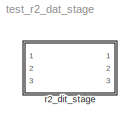
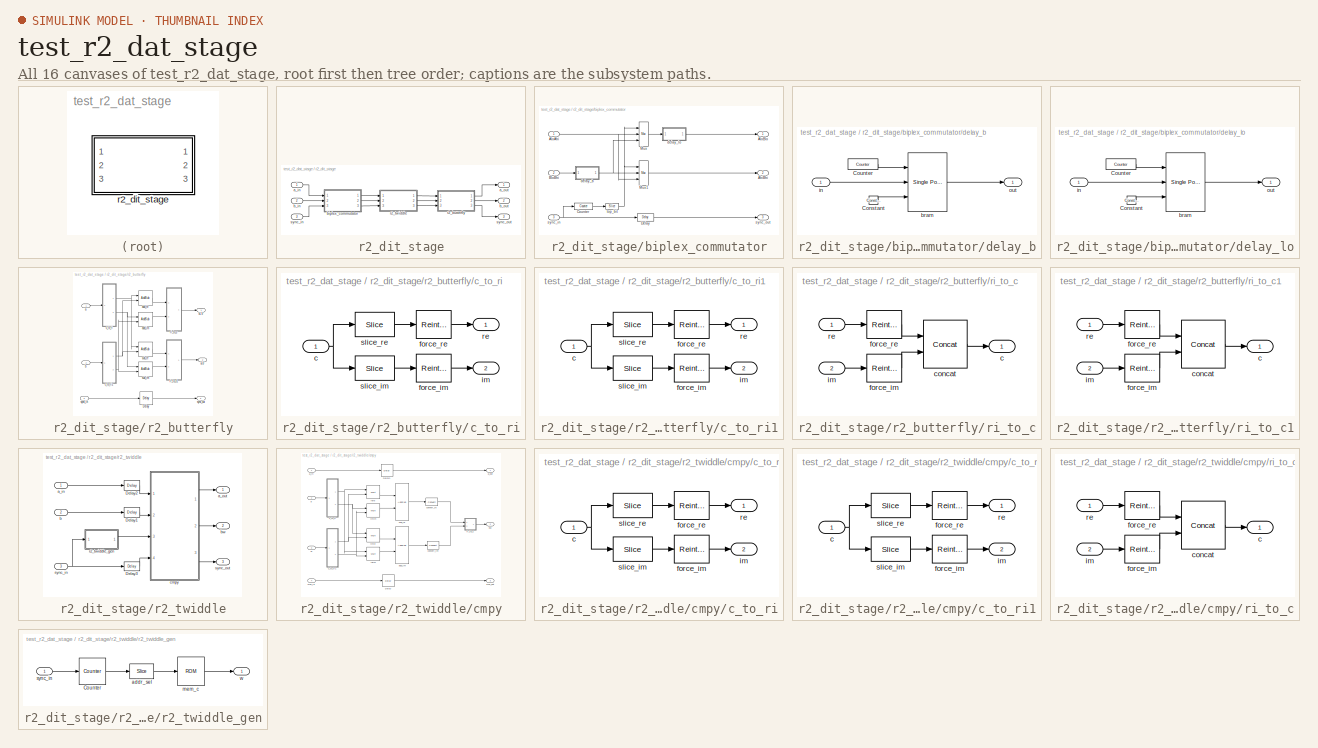
[diagram: thumbnail index - all 16 canvases of the model, root first then tree order]
MODEL test_r2_dat_stage
KIND model
BLOCK [SubSystem] r2_dit_stage
  AttributesFormatString = stage 3 of 8\ndelay bram\ntwiddle dist
  MaskCallbackString = ||||||||
  MaskDescription = A radix-2 decimation-in-time Fast Fourier Transform stage.
  MaskEnableString = on,on,on,on,on,on,on,on,on
  MaskHelp = <pre>\nDescription::\n\nA radix-2 decimation-in-time Fast Fourier Transform stage.\n\nThis radix-2 decimation-in-time FFT stage is designed to be daisy chained together\nto form a multi-stage FFT.  The resulting FFT will have (2^n_stages) points.\n\nThe two inputs to the chain are independent complex signals (e.g. A and B).\n\nThe two outputs of the last stage of the chain are commuted such that t...<+2411ch>
  MaskIconFrame = on
  MaskIconOpaque = on
  MaskIconRotate = none
  MaskIconUnits = autoscale
  MaskInitialization = %return\nr2_dit_stage_init(gcb, ...\n    n_stages,cur_stage,n_bits,bin_pt, ...\n    commutator_bram,twiddle_bram, ...\n    n_bits_w,mult_latency,add_latency);
  MaskPromptString = Total Stages|Current Stage|Number of Bits In|Binary Point In/Out|Use BRAM for Biplex Commutator|Use BRAM For Twiddle Coefficients|Twiddle Coefficient Bitwidth|Multiplier Latency|Adder Latency
  MaskSelfModifiable = on
  MaskStyleString = edit,edit,edit,edit,checkbox,checkbox,edit,edit,edit
  MaskTabNameString = ,,,,,,,,
  MaskToolTipString = on,on,on,on,on,on,on,on,on
  MaskTunableValueString = on,on,on,on,on,on,on,on,on
  MaskType = Radix-2 DIT FFT Stage
  MaskValueString = 8|3|7|7|on|off|9|3|1
  MaskVarAliasString = ,,,,,,,,
  MaskVariables = n_stages=@1;cur_stage=@2;n_bits=@3;bin_pt=@4;commutator_bram=@5;twiddle_bram=@6;n_bits_w=@7;mult_latency=@8;add_latency=@9;
  MaskVisibilityString = on,on,on,on,on,on,on,on,on
  MinAlgLoopOccurrences = off
  Ports = [3, 3]
  RTWSystemCode = Auto
  TreatAsAtomicUnit = off
  UserData = DataTag0
  UserDataPersistent = on
BLOCK [Inport] r2_dit_stage/a_in
  IconDisplay = Port number
  LatchInput = off
  Port = 1
BLOCK [Outport] r2_dit_stage/a_out
  BusOutputAsStruct = off
  IconDisplay = Port number
BLOCK [Inport] r2_dit_stage/b_in
  IconDisplay = Port number
  LatchInput = off
  Port = 2
BLOCK [Outport] r2_dit_stage/b_out
  BusOutputAsStruct = off
  IconDisplay = Port number
  Port = 2
BLOCK [SubSystem] r2_dit_stage/biplex_commutator
  AttributesFormatString = size = 64\ndelay bram
  MaskCallbackString = ||
  MaskDescription = The biplex commutator commutes the first half of the BloBhi input \"block\"  with the last half of the AloAhi input \"block\".  A \"block\" is 2^log2_size consecutive samples (i.e. always a power of 2).  sync_in precedes the first data input sample by one clock cycle.  Overall latency from sync_in to sync_out is 2^(log2_size-1)+1.
  MaskEnableString = on,on,on
  MaskHelp = <pre>\nDescription::\n\nThe biplex commutator commutes the first half of the BloBhi input \"block\"  with the last half\nof the AloAhi input \"block\".  A \"block\" is 2^log2_size consecutive samples (i.e. always a\npower of 2).\n\nsync_in precedes the first data input sample by one clock cycle.\nsync_out precedes the corresponding output sample by one clock cycle.\nOverall latency from sync_in to...<+566ch>
  MaskIconFrame = on
  MaskIconOpaque = on
  MaskIconRotate = none
  MaskIconUnits = autoscale
  MaskPromptString = Log2 Block Size|Bit Width|Use BRAM
  MaskSelfModifiable = on
  MaskStyleString = edit,edit,checkbox
  MaskTabNameString = ,,
  MaskToolTipString = on,on,on
  MaskTunableValueString = on,on,on
  MaskType = Biplex Commutator
  MaskValueString = 6|7|on
  MaskVarAliasString = ,,
  MaskVariables = log2_size=@1;n_bits=@2;use_bram=@3;
  MaskVisibilityString = on,on,on
  MinAlgLoopOccurrences = off
  Ports = [3, 3]
  RTWSystemCode = Auto
  TreatAsAtomicUnit = off
  UserData = DataTag1
  UserDataPersistent = on
BLOCK [Outport] r2_dit_stage/biplex_commutator/AhiBhi
  BusOutputAsStruct = off
  IconDisplay = Port number
  Port = 2
BLOCK [Inport] r2_dit_stage/biplex_commutator/AloAhi
  IconDisplay = Port number
  LatchInput = off
  Port = 1
BLOCK [Outport] r2_dit_stage/biplex_commutator/AloBlo
  BusOutputAsStruct = off
  IconDisplay = Port number
BLOCK [Inport] r2_dit_stage/biplex_commutator/BloBhi
  IconDisplay = Port number
  LatchInput = off
  Port = 2
BLOCK [Reference] r2_dit_stage/biplex_commutator/Counter  REF=xbsIndex_r3/Counter
  Ports = [1, 1]
  SourceBlock = xbsIndex_r3/Counter
  SourceType = Xilinx Counter Block
  arith_type = Unsigned
  bin_pt = 0
  cnt_by_val = 1
  cnt_to = Inf
  cnt_type = Free Running
  dbl_ovrd = off
  en = off
  explicit_period = off
  gen_core = off
  load_pin = off
  n_bits = 6
  operation = Up
  period = 1
  rst = on
  show_param = off
  start_count = 0
  use_rpm = on
  xl_area = [0, 0, 0, 0, 0, 0, 0]
  xl_use_area = off
BLOCK [Reference] r2_dit_stage/biplex_commutator/Delay  REF=xbsIndex_r3/Delay
  Ports = [1, 1]
  SourceBlock = xbsIndex_r3/Delay
  SourceType = Xilinx Delay Block
  accept_only_valid = off
  dbl_ovrd = off
  en = off
  explicit_period = off
  init_zero = on
  latency = 33
  period = 1
  reg_retiming = off
  show_param = off
  xl_area = [0, 0, 0, 0, 0, 0, 0]
  xl_use_area = off
BLOCK [Reference] r2_dit_stage/biplex_commutator/Mux  REF=xbsIndex_r3/Mux
  Ports = [3, 1]
  SourceBlock = xbsIndex_r3/Mux
  SourceType = Xilinx Multiplexer Block
  arith_type = Signed  (2's comp)
  bin_pt = 2
  dbl_ovrd = off
  en = off
  explicit_period = off
  gen_core = off
  inputs = 2
  latency = 1
  mux_type = off
  n_bits = 8
  overflow = Wrap
  period = 1
  precision = Full
  quantization = Truncate
  show_param = off
  use_rpm = off
  xl_area = [0, 0, 0, 0, 0, 0, 0]
  xl_use_area = off
BLOCK [Reference] r2_dit_stage/biplex_commutator/Mux1  REF=xbsIndex_r3/Mux
  Ports = [3, 1]
  SourceBlock = xbsIndex_r3/Mux
  SourceType = Xilinx Multiplexer Block
  arith_type = Signed  (2's comp)
  bin_pt = 2
  dbl_ovrd = off
  en = off
  explicit_period = off
  gen_core = off
  inputs = 2
  latency = 1
  mux_type = off
  n_bits = 8
  overflow = Wrap
  period = 1
  precision = Full
  quantization = Truncate
  show_param = on
  use_rpm = off
  xl_area = [0, 0, 0, 0, 0, 0, 0]
  xl_use_area = off
BLOCK [SubSystem] r2_dit_stage/biplex_commutator/delay_b
  AttributesFormatString = bram depth = 32
  MaskCallbackString = |
  MaskDescription = A delay block that uses BRAM for its storage.
  MaskEnableString = on,off
  MaskHelp = <pre>\nDescription::\n\nA delay block that uses BRAM for its storage.\n\nMask Parameters::\n\nDelay Depth (delay_depth): The length of the delay.\n\nBuffer Latency (buffer_latency): The latency of the underlying storage.\n\nBuffer Latency defaults to 1 and cannot be changed via the block's dialog box.\nFuture versions may enable the setting of that parameter from the dialog.\n</pre>
  MaskIconFrame = on
  MaskIconOpaque = on
  MaskIconRotate = none
  MaskIconUnits = autoscale
  MaskPromptString = Delay Depth|Buffer Latency
  MaskSelfModifiable = on
  MaskStyleString = edit,edit
  MaskTabNameString = ,
  MaskToolTipString = on,on
  MaskTunableValueString = on,off
  MaskType = BRAM Delay
  MaskValueString = 32|
  MaskVarAliasString = ,
  MaskVariables = delay_depth=@1;buffer_latency=@2;
  MaskVisibilityString = on,off
  MinAlgLoopOccurrences = off
  Ports = [1, 1]
  RTWSystemCode = Auto
  TreatAsAtomicUnit = off
  UserData = DataTag2
  UserDataPersistent = on
BLOCK [Reference] r2_dit_stage/biplex_commutator/delay_b/Constant  REF=xbsIndex_r3/Constant
  Ports = [0, 1]
  SourceBlock = xbsIndex_r3/Constant
  SourceType = Xilinx Constant Block
  arith_type = Boolean
  bin_pt = 0
  carry = CIN
  const = 1
  dbl_ovrd = off
  equ = P=C
  explicit_period = on
  inp1 = P
  inp2 = PCIN>>17
  iostate = 0
  n_bits = 1
  opr = +
  opselect = C
  period = 1
BLOCK [Reference] r2_dit_stage/biplex_commutator/delay_b/Counter  REF=xbsIndex_r3/Counter
  Ports = [0, 1]
  SourceBlock = xbsIndex_r3/Counter
  SourceType = Xilinx Counter Block
  arith_type = Unsigned
  bin_pt = 0
  cnt_by_val = 1
  cnt_to = 30
  cnt_type = Count Limited
  dbl_ovrd = off
  en = off
  explicit_period = off
  gen_core = off
  load_pin = off
  n_bits = 5
  operation = Up
  period = 1
  rst = off
  show_param = off
  start_count = 0
  use_rpm = on
  xl_area = [0, 0, 0, 0, 0, 0, 0]
  xl_use_area = off
BLOCK [Reference] r2_dit_stage/biplex_commutator/delay_b/bram  REF=xbsIndex_r3/Single Port RAM
  Ports = [3, 1]
  SourceBlock = xbsIndex_r3/Single Port RAM
  SourceType = Xilinx Single Port Random Access Memory
  dbl_ovrd = off
  depth = 32
  distributed_mem = off
  en = off
  explicit_period = off
  gen_core = off
  initVector = 0
  init_reg = 0
  init_zero = on
  latency = 1
  period = 1
  rst = off
  show_param = off
  use_rpm = off
  write_mode = Read Before Write
  xl_area = [0, 0, 0, 0, 0, 0, 0]
  xl_use_area = off
BLOCK [Inport] r2_dit_stage/biplex_commutator/delay_b/in
  IconDisplay = Port number
  LatchInput = off
  Port = 1
BLOCK [Outport] r2_dit_stage/biplex_commutator/delay_b/out
  BusOutputAsStruct = off
  IconDisplay = Port number
BLOCK [SubSystem] r2_dit_stage/biplex_commutator/delay_lo
  AttributesFormatString = bram depth = 32
  MaskCallbackString = |
  MaskDescription = A delay block that uses BRAM for its storage.
  MaskEnableString = on,off
  MaskHelp = <pre>\nDescription::\n\nA delay block that uses BRAM for its storage.\n\nMask Parameters::\n\nDelay Depth (delay_depth): The length of the delay.\n\nBuffer Latency (buffer_latency): The latency of the underlying storage.\n\nBuffer Latency defaults to 1 and cannot be changed via the block's dialog box.\nFuture versions may enable the setting of that parameter from the dialog.\n</pre>
  MaskIconFrame = on
  MaskIconOpaque = on
  MaskIconRotate = none
  MaskIconUnits = autoscale
  MaskPromptString = Delay Depth|Buffer Latency
  MaskSelfModifiable = on
  MaskStyleString = edit,edit
  MaskTabNameString = ,
  MaskToolTipString = on,on
  MaskTunableValueString = on,off
  MaskType = BRAM Delay
  MaskValueString = 32|
  MaskVarAliasString = ,
  MaskVariables = delay_depth=@1;buffer_latency=@2;
  MaskVisibilityString = on,off
  MinAlgLoopOccurrences = off
  Ports = [1, 1]
  RTWSystemCode = Auto
  TreatAsAtomicUnit = off
  UserData = DataTag3
  UserDataPersistent = on
BLOCK [Reference] r2_dit_stage/biplex_commutator/delay_lo/Constant  REF=xbsIndex_r3/Constant
  Ports = [0, 1]
  SourceBlock = xbsIndex_r3/Constant
  SourceType = Xilinx Constant Block
  arith_type = Boolean
  bin_pt = 0
  carry = CIN
  const = 1
  dbl_ovrd = off
  equ = P=C
  explicit_period = on
  inp1 = P
  inp2 = PCIN>>17
  iostate = 0
  n_bits = 1
  opr = +
  opselect = C
  period = 1
BLOCK [Reference] r2_dit_stage/biplex_commutator/delay_lo/Counter  REF=xbsIndex_r3/Counter
  Ports = [0, 1]
  SourceBlock = xbsIndex_r3/Counter
  SourceType = Xilinx Counter Block
  arith_type = Unsigned
  bin_pt = 0
  cnt_by_val = 1
  cnt_to = 30
  cnt_type = Count Limited
  dbl_ovrd = off
  en = off
  explicit_period = off
  gen_core = off
  load_pin = off
  n_bits = 5
  operation = Up
  period = 1
  rst = off
  show_param = off
  start_count = 0
  use_rpm = on
  xl_area = [0, 0, 0, 0, 0, 0, 0]
  xl_use_area = off
BLOCK [Reference] r2_dit_stage/biplex_commutator/delay_lo/bram  REF=xbsIndex_r3/Single Port RAM
  Ports = [3, 1]
  SourceBlock = xbsIndex_r3/Single Port RAM
  SourceType = Xilinx Single Port Random Access Memory
  dbl_ovrd = off
  depth = 32
  distributed_mem = off
  en = off
  explicit_period = off
  gen_core = off
  initVector = 0
  init_reg = 0
  init_zero = on
  latency = 1
  period = 1
  rst = off
  show_param = off
  use_rpm = off
  write_mode = Read Before Write
  xl_area = [0, 0, 0, 0, 0, 0, 0]
  xl_use_area = off
BLOCK [Inport] r2_dit_stage/biplex_commutator/delay_lo/in
  IconDisplay = Port number
  LatchInput = off
  Port = 1
BLOCK [Outport] r2_dit_stage/biplex_commutator/delay_lo/out
  BusOutputAsStruct = off
  IconDisplay = Port number
BLOCK [Inport] r2_dit_stage/biplex_commutator/sync_in
  IconDisplay = Port number
  LatchInput = off
  Port = 3
BLOCK [Outport] r2_dit_stage/biplex_commutator/sync_out
  BusOutputAsStruct = off
  IconDisplay = Port number
  Port = 3
BLOCK [Reference] r2_dit_stage/biplex_commutator/top_bit  REF=xbsIndex_r3/Slice
  Ports = [1, 1]
  SourceBlock = xbsIndex_r3/Slice
  SourceType = Xilinx Slice Block
  base0 = LSB of Input
  base1 = MSB of Input
  bit0 = 0
  bit1 = 0
  boolean_output = off
  dbl_ovrd = off
  explicit_period = off
  mode = Upper Bit Location + Width
  nbits = 1
  period = 1
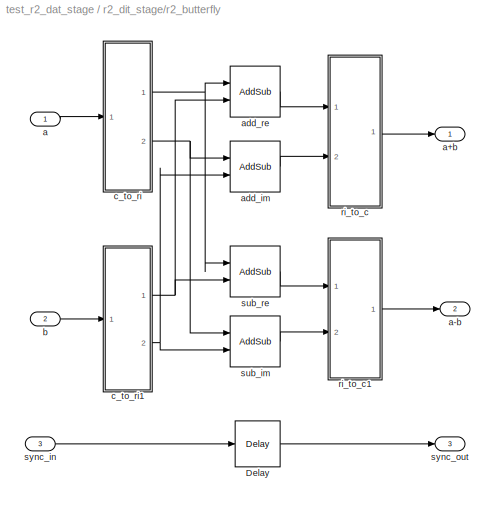
BLOCK [SubSystem] r2_dit_stage/r2_butterfly
  MaskCallbackString = |
  MaskDescription = The radix-2 butterfly produces a+b and a-b outputs for a and b inputs.
  MaskEnableString = on,on
  MaskHelp = <pre>\nDescription::\n\nThe radix-2 butterfly produces a+b and a-b outputs for a and b inputs.\nThe outputs are one bit wider than the inputs.\nThe output precision (i.e. the number of fractional bits) stays the same.\n\nMask Parameters::\n\nBit Width In (n_bits): Specifies the width of the real/imaginary components.\nWidth of each component is assumed equal.\n\nAdder Latency (add_latency): Latenc...<+48ch>
  MaskIconFrame = on
  MaskIconOpaque = on
  MaskIconRotate = none
  MaskIconUnits = autoscale
  MaskPromptString = Bit Width In|Adder Latency
  MaskSelfModifiable = on
  MaskStyleString = edit,edit
  MaskTabNameString = ,
  MaskToolTipString = on,on
  MaskTunableValueString = on,on
  MaskType = Radix-2 Butterfly
  MaskValueString = 7|1
  MaskVarAliasString = ,
  MaskVariables = n_bits=@1;add_latency=@2;
  MaskVisibilityString = on,on
  MinAlgLoopOccurrences = off
  Ports = [3, 3]
  RTWSystemCode = Auto
  TreatAsAtomicUnit = off
  UserData = DataTag4
  UserDataPersistent = on
BLOCK [Reference] r2_dit_stage/r2_butterfly/Delay  REF=xbsIndex_r3/Delay
  Ports = [1, 1]
  SourceBlock = xbsIndex_r3/Delay
  SourceType = Xilinx Delay Block
  accept_only_valid = off
  dbl_ovrd = off
  en = off
  explicit_period = off
  init_zero = on
  latency = 1
  period = 1
  reg_retiming = off
  show_param = off
  xl_area = [0, 0, 0, 0, 0, 0, 0]
  xl_use_area = off
BLOCK [Inport] r2_dit_stage/r2_butterfly/a
  IconDisplay = Port number
  LatchInput = off
  Port = 1
BLOCK [Outport] r2_dit_stage/r2_butterfly/a+b
  BusOutputAsStruct = off
  IconDisplay = Port number
BLOCK [Outport] r2_dit_stage/r2_butterfly/a-b
  BusOutputAsStruct = off
  IconDisplay = Port number
  Port = 2
BLOCK [Reference] r2_dit_stage/r2_butterfly/add_im  REF=xbsIndex_r3/AddSub
  Ports = [2, 1]
  SourceBlock = xbsIndex_r3/AddSub
  SourceType = Xilinx Adder/Subtractor
  arith_type = Unsigned
  bin_pt = 2
  dbl_ovrd = off
  en = off
  explicit_period = off
  gen_core = off
  latency = 1
  mode = Addition
  n_bits = 8
  overflow = Wrap
  period = 1
  pipeline = on
  precision = Full
  quantization = Truncate
  show_param = on
  use_carryin = off
  use_carryout = off
  use_core = on
  use_rpm = on
  xl_area = [0, 0, 0, 0, 0, 0, 0]
  xl_use_area = off
BLOCK [Reference] r2_dit_stage/r2_butterfly/add_re  REF=xbsIndex_r3/AddSub
  Ports = [2, 1]
  SourceBlock = xbsIndex_r3/AddSub
  SourceType = Xilinx Adder/Subtractor
  arith_type = Unsigned
  bin_pt = 2
  dbl_ovrd = off
  en = off
  explicit_period = off
  gen_core = off
  latency = 1
  mode = Addition
  n_bits = 8
  overflow = Wrap
  period = 1
  pipeline = on
  precision = Full
  quantization = Truncate
  show_param = on
  use_carryin = off
  use_carryout = off
  use_core = on
  use_rpm = on
  xl_area = [0, 0, 0, 0, 0, 0, 0]
  xl_use_area = off
BLOCK [Inport] r2_dit_stage/r2_butterfly/b
  IconDisplay = Port number
  LatchInput = off
  Port = 2
BLOCK [SubSystem] r2_dit_stage/r2_butterfly/c_to_ri
  AttributesFormatString = 7_0 r/i
  MaskCallbackString = |
  MaskDescription = Outputs real and imaginary components of a complex input.
  MaskEnableString = on,on
  MaskHelp = <pre>\nDescription::\n\nOutputs real and imaginary components of a complex input.\nUseful for simplifying interconnects.\nSee also: Real-Imag to Complex (ri_to_c)\n\nMask Parameters::\n\nBit Width (n_bits): Specifies the width of the real/imaginary components.\nAssumed equal for both components.\n\nBinary Point (bin_pt): Specifies the binary point location in the real/imaginary components.\nAssume...<+36ch>  <repeated x4 — deduplicated; at blocks: c_to_ri, c_to_ri1>
  MaskIconFrame = on
  MaskIconOpaque = on
  MaskIconRotate = none
  MaskIconUnits = autoscale
  MaskPromptString = Bit Width|Binary Point
  MaskSelfModifiable = on
  MaskStyleString = edit,edit
  MaskTabNameString = ,
  MaskToolTipString = on,on
  MaskTunableValueString = on,on
  MaskType = Complex to Real-Imag
  MaskValueString = 7|0
  MaskVarAliasString = ,
  MaskVariables = n_bits=@1;bin_pt=@2;
  MaskVisibilityString = on,on
  MinAlgLoopOccurrences = off
  Ports = [1, 2]
  RTWSystemCode = Auto
  TreatAsAtomicUnit = off
  UserData = DataTag5
  UserDataPersistent = on
BLOCK [Inport] r2_dit_stage/r2_butterfly/c_to_ri/c
  IconDisplay = Port number
  LatchInput = off
  Port = 1
BLOCK [Reference] r2_dit_stage/r2_butterfly/c_to_ri/force_im  REF=xbsIndex_r3/Reinterpret
  Ports = [1, 1]
  SourceBlock = xbsIndex_r3/Reinterpret
  SourceType = Xilinx Type Reinterpreting Block
  arith_type = Signed  (2's comp)
  bin_pt = 0
  force_arith_type = on
  force_bin_pt = on
  force_valid = on
BLOCK [Reference] r2_dit_stage/r2_butterfly/c_to_ri/force_re  REF=xbsIndex_r3/Reinterpret
  Ports = [1, 1]
  SourceBlock = xbsIndex_r3/Reinterpret
  SourceType = Xilinx Type Reinterpreting Block
  arith_type = Signed  (2's comp)
  bin_pt = 0
  force_arith_type = on
  force_bin_pt = on
  force_valid = on
BLOCK [Outport] r2_dit_stage/r2_butterfly/c_to_ri/im
  BusOutputAsStruct = off
  IconDisplay = Port number
  Port = 2
BLOCK [Outport] r2_dit_stage/r2_butterfly/c_to_ri/re
  BusOutputAsStruct = off
  IconDisplay = Port number
BLOCK [Reference] r2_dit_stage/r2_butterfly/c_to_ri/slice_im  REF=xbsIndex_r3/Slice
  Ports = [1, 1]
  SourceBlock = xbsIndex_r3/Slice
  SourceType = Xilinx Slice Block
  base0 = LSB of Input
  base1 = MSB of Input
  bit0 = 0
  bit1 = 0
  boolean_output = off
  dbl_ovrd = off
  explicit_period = off
  mode = Lower Bit Location + Width
  nbits = 7
  period = 1
BLOCK [Reference] r2_dit_stage/r2_butterfly/c_to_ri/slice_re  REF=xbsIndex_r3/Slice
  Ports = [1, 1]
  SourceBlock = xbsIndex_r3/Slice
  SourceType = Xilinx Slice Block
  base0 = LSB of Input
  base1 = MSB of Input
  bit0 = 0
  bit1 = 0
  boolean_output = off
  dbl_ovrd = off
  explicit_period = off
  mode = Upper Bit Location + Width
  nbits = 7
  period = 1
BLOCK [SubSystem] r2_dit_stage/r2_butterfly/c_to_ri1
  AttributesFormatString = 7_0 r/i
  MaskCallbackString = |
  MaskDescription = Outputs real and imaginary components of a complex input.
  MaskEnableString = on,on
  MaskIconFrame = on
  MaskIconOpaque = on
  MaskIconRotate = none
  MaskIconUnits = autoscale
  MaskPromptString = Bit Width|Binary Point
  MaskSelfModifiable = on
  MaskStyleString = edit,edit
  MaskTabNameString = ,
  MaskToolTipString = on,on
  MaskTunableValueString = on,on
  MaskType = Complex to Real-Imag
  MaskValueString = 7|0
  MaskVarAliasString = ,
  MaskVariables = n_bits=@1;bin_pt=@2;
  MaskVisibilityString = on,on
  MinAlgLoopOccurrences = off
  Ports = [1, 2]
  RTWSystemCode = Auto
  TreatAsAtomicUnit = off
  UserData = DataTag6
  UserDataPersistent = on
BLOCK [Inport] r2_dit_stage/r2_butterfly/c_to_ri1/c
  IconDisplay = Port number
  LatchInput = off
  Port = 1
BLOCK [Reference] r2_dit_stage/r2_butterfly/c_to_ri1/force_im  REF=xbsIndex_r3/Reinterpret
  Ports = [1, 1]
  SourceBlock = xbsIndex_r3/Reinterpret
  SourceType = Xilinx Type Reinterpreting Block
  arith_type = Signed  (2's comp)
  bin_pt = 0
  force_arith_type = on
  force_bin_pt = on
  force_valid = on
BLOCK [Reference] r2_dit_stage/r2_butterfly/c_to_ri1/force_re  REF=xbsIndex_r3/Reinterpret
  Ports = [1, 1]
  SourceBlock = xbsIndex_r3/Reinterpret
  SourceType = Xilinx Type Reinterpreting Block
  arith_type = Signed  (2's comp)
  bin_pt = 0
  force_arith_type = on
  force_bin_pt = on
  force_valid = on
BLOCK [Outport] r2_dit_stage/r2_butterfly/c_to_ri1/im
  BusOutputAsStruct = off
  IconDisplay = Port number
  Port = 2
BLOCK [Outport] r2_dit_stage/r2_butterfly/c_to_ri1/re
  BusOutputAsStruct = off
  IconDisplay = Port number
BLOCK [Reference] r2_dit_stage/r2_butterfly/c_to_ri1/slice_im  REF=xbsIndex_r3/Slice
  Ports = [1, 1]
  SourceBlock = xbsIndex_r3/Slice
  SourceType = Xilinx Slice Block
  base0 = LSB of Input
  base1 = MSB of Input
  bit0 = 0
  bit1 = 0
  boolean_output = off
  dbl_ovrd = off
  explicit_period = off
  mode = Lower Bit Location + Width
  nbits = 7
  period = 1
BLOCK [Reference] r2_dit_stage/r2_butterfly/c_to_ri1/slice_re  REF=xbsIndex_r3/Slice
  Ports = [1, 1]
  SourceBlock = xbsIndex_r3/Slice
  SourceType = Xilinx Slice Block
  base0 = LSB of Input
  base1 = MSB of Input
  bit0 = 0
  bit1 = 0
  boolean_output = off
  dbl_ovrd = off
  explicit_period = off
  mode = Upper Bit Location + Width
  nbits = 7
  period = 1
BLOCK [SubSystem] r2_dit_stage/r2_butterfly/ri_to_c
  MaskDescription = Concatenates real and imaginary inputs into a complex output.
  MaskHelp = <pre>\nDescription::\n\nConcatenates a real and imaginary input into a complex output.\nUseful for simplifying interconnects.\nSee also: Complex to Real-Imag (c_to_ri)\n\nMask Parameters::\n\n(N/A)\n</pre>  <repeated x3 — deduplicated; at blocks: ri_to_c, ri_to_c1>
  MaskIconFrame = on
  MaskIconOpaque = on
  MaskIconRotate = none
  MaskIconUnits = autoscale
  MaskInitialization = ri_to_c_init(gcb);
  MaskSelfModifiable = on
  MaskType = Real-Imag to Complex
  MinAlgLoopOccurrences = off
  Ports = [2, 1]
  RTWSystemCode = Auto
  TreatAsAtomicUnit = off
  UserData = DataTag7
  UserDataPersistent = on
BLOCK [Outport] r2_dit_stage/r2_butterfly/ri_to_c/c
  BusOutputAsStruct = off
  IconDisplay = Port number
BLOCK [Reference] r2_dit_stage/r2_butterfly/ri_to_c/concat  REF=xbsIndex_r3/Concat
  Ports = [2, 1]
  SourceBlock = xbsIndex_r3/Concat
  SourceType = Xilinx Bus Concatenator
  dbl_ovrd = off
  explicit_period = off
  num_inputs = 2
  period = 1
BLOCK [Reference] r2_dit_stage/r2_butterfly/ri_to_c/force_im  REF=xbsIndex_r3/Reinterpret
  Ports = [1, 1]
  SourceBlock = xbsIndex_r3/Reinterpret
  SourceType = Xilinx Type Reinterpreting Block
  arith_type = Unsigned
  bin_pt = 0
  force_arith_type = on
  force_bin_pt = on
  force_valid = on
BLOCK [Reference] r2_dit_stage/r2_butterfly/ri_to_c/force_re  REF=xbsIndex_r3/Reinterpret
  Ports = [1, 1]
  SourceBlock = xbsIndex_r3/Reinterpret
  SourceType = Xilinx Type Reinterpreting Block
  arith_type = Unsigned
  bin_pt = 0
  force_arith_type = on
  force_bin_pt = on
  force_valid = on
BLOCK [Inport] r2_dit_stage/r2_butterfly/ri_to_c/im
  IconDisplay = Port number
  LatchInput = off
  Port = 2
BLOCK [Inport] r2_dit_stage/r2_butterfly/ri_to_c/re
  IconDisplay = Port number
  LatchInput = off
  Port = 1
BLOCK [SubSystem] r2_dit_stage/r2_butterfly/ri_to_c1
  MaskDescription = Concatenates real and imaginary inputs into a complex output.
  MaskIconFrame = on
  MaskIconOpaque = on
  MaskIconRotate = none
  MaskIconUnits = autoscale
  MaskInitialization = ri_to_c_init(gcb);
  MaskSelfModifiable = on
  MaskType = Real-Imag to Complex
  MinAlgLoopOccurrences = off
  Ports = [2, 1]
  RTWSystemCode = Auto
  TreatAsAtomicUnit = off
  UserData = DataTag8
  UserDataPersistent = on
BLOCK [Outport] r2_dit_stage/r2_butterfly/ri_to_c1/c
  BusOutputAsStruct = off
  IconDisplay = Port number
BLOCK [Reference] r2_dit_stage/r2_butterfly/ri_to_c1/concat  REF=xbsIndex_r3/Concat
  Ports = [2, 1]
  SourceBlock = xbsIndex_r3/Concat
  SourceType = Xilinx Bus Concatenator
  dbl_ovrd = off
  explicit_period = off
  num_inputs = 2
  period = 1
BLOCK [Reference] r2_dit_stage/r2_butterfly/ri_to_c1/force_im  REF=xbsIndex_r3/Reinterpret
  Ports = [1, 1]
  SourceBlock = xbsIndex_r3/Reinterpret
  SourceType = Xilinx Type Reinterpreting Block
  arith_type = Unsigned
  bin_pt = 0
  force_arith_type = on
  force_bin_pt = on
  force_valid = on
BLOCK [Reference] r2_dit_stage/r2_butterfly/ri_to_c1/force_re  REF=xbsIndex_r3/Reinterpret
  Ports = [1, 1]
  SourceBlock = xbsIndex_r3/Reinterpret
  SourceType = Xilinx Type Reinterpreting Block
  arith_type = Unsigned
  bin_pt = 0
  force_arith_type = on
  force_bin_pt = on
  force_valid = on
BLOCK [Inport] r2_dit_stage/r2_butterfly/ri_to_c1/im
  IconDisplay = Port number
  LatchInput = off
  Port = 2
BLOCK [Inport] r2_dit_stage/r2_butterfly/ri_to_c1/re
  IconDisplay = Port number
  LatchInput = off
  Port = 1
BLOCK [Reference] r2_dit_stage/r2_butterfly/sub_im  REF=xbsIndex_r3/AddSub
  Ports = [2, 1]
  SourceBlock = xbsIndex_r3/AddSub
  SourceType = Xilinx Adder/Subtractor
  arith_type = Unsigned
  bin_pt = 2
  dbl_ovrd = off
  en = off
  explicit_period = off
  gen_core = off
  latency = 1
  mode = Subtraction
  n_bits = 8
  overflow = Wrap
  period = 1
  pipeline = on
  precision = Full
  quantization = Truncate
  show_param = on
  use_carryin = off
  use_carryout = off
  use_core = on
  use_rpm = on
  xl_area = [0, 0, 0, 0, 0, 0, 0]
  xl_use_area = off
BLOCK [Reference] r2_dit_stage/r2_butterfly/sub_re  REF=xbsIndex_r3/AddSub
  Ports = [2, 1]
  SourceBlock = xbsIndex_r3/AddSub
  SourceType = Xilinx Adder/Subtractor
  arith_type = Unsigned
  bin_pt = 2
  dbl_ovrd = off
  en = off
  explicit_period = off
  gen_core = off
  latency = 1
  mode = Subtraction
  n_bits = 8
  overflow = Wrap
  period = 1
  pipeline = on
  precision = Full
  quantization = Truncate
  show_param = on
  use_carryin = off
  use_carryout = off
  use_core = on
  use_rpm = on
  xl_area = [0, 0, 0, 0, 0, 0, 0]
  xl_use_area = off
BLOCK [Inport] r2_dit_stage/r2_butterfly/sync_in
  IconDisplay = Port number
  LatchInput = off
  Port = 3
BLOCK [Outport] r2_dit_stage/r2_butterfly/sync_out
  BusOutputAsStruct = off
  IconDisplay = Port number
  Port = 3
BLOCK [SubSystem] r2_dit_stage/r2_twiddle
  AttributesFormatString = 4 twiddles in dist
  MaskCallbackString = ||||||||
  MaskDescription = A general twiddle stage for radix-2 Fast Fourier Transforms. Can be used in  Decimation in Time (i.e. twiddles before butterflies) or Decimation in Frequency (i.e. twiddles after butterflies) FFTs.  Regardless of the decimation mode, the FFT is assumed to have inputs in normal order and outputs in bit-reversed order.
  MaskEnableString = on,on,on,on,on,on,on,on,on
  MaskHelp = <pre>\nDescription::\n\nA general twiddle stage for radix-2 Fast Fourier Transforms.\n\nCan be used in  Decimation in Time (i.e. twiddles before butterflies) or Decimation in Frequency\n(i.e. twiddles after butterflies) FFTs.  Regardless of the decimation mode, the FFT is assumed\nto have inputs in normal order and outputs in bit-reversed order.\n\nInput a_in is passed through unchanged to a_out, ...<+1757ch>
  MaskIconFrame = on
  MaskIconOpaque = on
  MaskIconRotate = none
  MaskIconUnits = autoscale
  MaskPromptString = Total Stages|Current Stage|Decimation Mode|Number of Bits In/Out|Binary Point In/Out|Twiddle Coefficient Bitwidth|Use BRAM For Twiddle Coefficients|Multiplier Latency|Adder Latency
  MaskSelfModifiable = on
  MaskStyleString = edit,edit,popup(Time|Frequency),edit,edit,edit,checkbox,edit,edit
  MaskTabNameString = ,,,,,,,,
  MaskToolTipString = on,on,on,on,on,on,on,on,on
  MaskTunableValueString = on,on,on,on,on,on,on,on,on
  MaskType = Radix-2 General Twiddle Stage
  MaskValueString = 8|3|Time|7|7|9|off|3|1
  MaskVarAliasString = ,,,,,,,,
  MaskVariables = n_stages=@1;cur_stage=@2;decimation=@3;n_bits=@4;bin_pt=@5;n_bits_w=@6;use_bram=@7;mult_latency=@8;add_latency=@9;
  MaskVisibilityString = on,on,on,on,on,on,on,on,on
  MinAlgLoopOccurrences = off
  Ports = [3, 3]
  RTWSystemCode = Auto
  TreatAsAtomicUnit = off
  UserData = DataTag9
  UserDataPersistent = on
BLOCK [Reference] r2_dit_stage/r2_twiddle/Delay1  REF=xbsIndex_r3/Delay
  Ports = [1, 1]
  SourceBlock = xbsIndex_r3/Delay
  SourceType = Xilinx Delay Block
  accept_only_valid = off
  dbl_ovrd = off
  en = off
  explicit_period = off
  init_zero = on
  latency = 1
  period = 1
  reg_retiming = off
  show_param = off
  xl_area = [0, 0, 0, 0, 0, 0, 0]
  xl_use_area = off
BLOCK [Reference] r2_dit_stage/r2_twiddle/Delay2  REF=xbsIndex_r3/Delay
  Ports = [1, 1]
  SourceBlock = xbsIndex_r3/Delay
  SourceType = Xilinx Delay Block
  accept_only_valid = off
  dbl_ovrd = off
  en = off
  explicit_period = off
  init_zero = on
  latency = 1
  period = 1
  reg_retiming = off
  show_param = off
  xl_area = [0, 0, 0, 0, 0, 0, 0]
  xl_use_area = off
BLOCK [Reference] r2_dit_stage/r2_twiddle/Delay3  REF=xbsIndex_r3/Delay
  Ports = [1, 1]
  SourceBlock = xbsIndex_r3/Delay
  SourceType = Xilinx Delay Block
  accept_only_valid = off
  dbl_ovrd = off
  en = off
  explicit_period = off
  init_zero = on
  latency = 1
  period = 1
  reg_retiming = off
  show_param = off
  xl_area = [0, 0, 0, 0, 0, 0, 0]
  xl_use_area = off
BLOCK [Inport] r2_dit_stage/r2_twiddle/a_in
  IconDisplay = Port number
  LatchInput = off
  Port = 1
BLOCK [Outport] r2_dit_stage/r2_twiddle/a_out
  BusOutputAsStruct = off
  IconDisplay = Port number
BLOCK [Inport] r2_dit_stage/r2_twiddle/b
  IconDisplay = Port number
  LatchInput = off
  Port = 2
BLOCK [Outport] r2_dit_stage/r2_twiddle/bw
  BusOutputAsStruct = off
  IconDisplay = Port number
  Port = 2
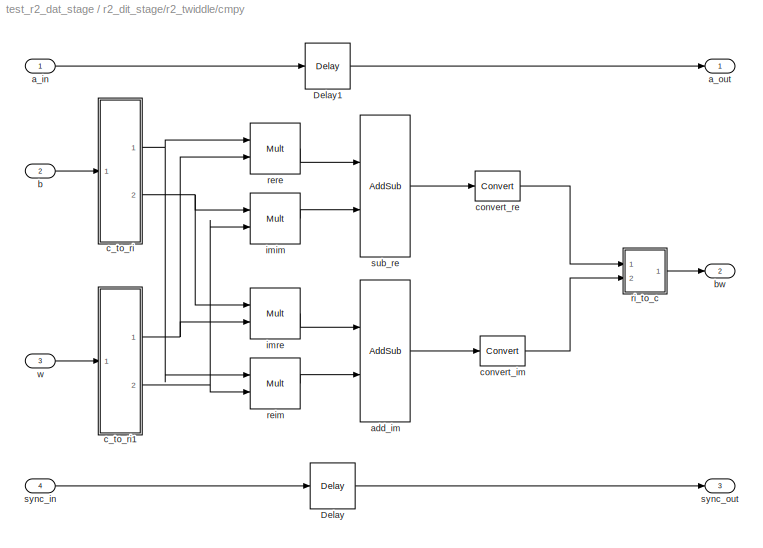
BLOCK [SubSystem] r2_dit_stage/r2_twiddle/cmpy
  AttributesFormatString = 7_6 * 9_7 ==> 7_6\nround even, wrap
  MaskCallbackString = |||||||||
  MaskDescription = This block multiplies two complex numbers using 4 real multipliers and 2 real adders.  Pass-through paths are provided for another complex number and a sync signal.  These pass through paths provide delay that matches the latency of the complex multiply operation.
  MaskEnableString = on,on,on,on,on,on,on,on,on,on
  MaskHelp = <pre>\nDescription::\n\nThis block multiplies two complex numbers using 4 real multipliers and 2 real adders.\nPass-through paths are provided for another complex number and a sync signal.\nThese paths provide delay that matches the latency of the complex multiply operation.\n\na_in is passed through to a_out.\nb and w complex inputs are multiplied and their product appears on the bw output.\nsync...<+1222ch>
  MaskIconFrame = on
  MaskIconOpaque = on
  MaskIconRotate = none
  MaskIconUnits = autoscale
  MaskPromptString = Number of Bits B|Binary Point B|Number of Bits W|Binary Point W|Number of Bits BW|Binary Point BW|Quantization|Overflow|Multiplier Latency|Adder Latency
  MaskSelfModifiable = on
  MaskStyleString = edit,edit,edit,edit,edit,edit,popup(Truncate|Round  (unbiased: +/- Inf)|Round  (unbiased: Even Values)),popup(Wrap|Saturate|Error),edit,edit
  MaskTabNameString = ,,,,,,,,,
  MaskToolTipString = on,on,on,on,on,on,on,on,on,on
  MaskTunableValueString = on,on,on,on,on,on,on,on,on,on
  MaskType = Complex Multiplier (4 real multipliers)
  MaskValueString = 7|6|9|7|7|6|Round  (unbiased: Even Values)|Wrap|3|1
  MaskVarAliasString = ,,,,,,,,,
  MaskVariables = n_bits_b=@1;bin_pt_b=@2;n_bits_w=@3;bin_pt_w=@4;n_bits_bw=@5;bin_pt_bw=@6;quantization=@7;overflow=@8;mult_latency=@9;add_latency=@10;
  MaskVisibilityString = on,on,on,on,on,on,on,on,on,on
  MinAlgLoopOccurrences = off
  Ports = [4, 3]
  RTWSystemCode = Auto
  TreatAsAtomicUnit = off
  UserData = DataTag10
  UserDataPersistent = on
BLOCK [Reference] r2_dit_stage/r2_twiddle/cmpy/Delay  REF=xbsIndex_r3/Delay
  Ports = [1, 1]
  SourceBlock = xbsIndex_r3/Delay
  SourceType = Xilinx Delay Block
  accept_only_valid = off
  dbl_ovrd = off
  en = off
  explicit_period = off
  init_zero = on
  latency = 7
  period = 1
  reg_retiming = off
  show_param = off
  xl_area = [0, 0, 0, 0, 0, 0, 0]
  xl_use_area = off
BLOCK [Reference] r2_dit_stage/r2_twiddle/cmpy/Delay1  REF=xbsIndex_r3/Delay
  Ports = [1, 1]
  SourceBlock = xbsIndex_r3/Delay
  SourceType = Xilinx Delay Block
  accept_only_valid = off
  dbl_ovrd = off
  en = off
  explicit_period = off
  init_zero = on
  latency = 7
  period = 1
  reg_retiming = off
  show_param = off
  xl_area = [0, 0, 0, 0, 0, 0, 0]
  xl_use_area = off
BLOCK [Inport] r2_dit_stage/r2_twiddle/cmpy/a_in
  IconDisplay = Port number
  LatchInput = off
  Port = 1
BLOCK [Outport] r2_dit_stage/r2_twiddle/cmpy/a_out
  BusOutputAsStruct = off
  IconDisplay = Port number
BLOCK [Reference] r2_dit_stage/r2_twiddle/cmpy/add_im  REF=xbsIndex_r3/AddSub
  Ports = [2, 1]
  SourceBlock = xbsIndex_r3/AddSub
  SourceType = Xilinx Adder/Subtractor
  arith_type = Signed  (2's comp)
  bin_pt = 13
  dbl_ovrd = off
  en = off
  explicit_period = off
  gen_core = off
  latency = 1
  mode = Addition
  n_bits = 14
  overflow = Wrap
  period = 1
  pipeline = on
  precision = User Defined
  quantization = Truncate
  show_param = on
  use_carryin = off
  use_carryout = off
  use_core = on
  use_rpm = on
  xl_area = [0, 0, 0, 0, 0, 0, 0]
  xl_use_area = off
BLOCK [Inport] r2_dit_stage/r2_twiddle/cmpy/b
  IconDisplay = Port number
  LatchInput = off
  Port = 2
BLOCK [Outport] r2_dit_stage/r2_twiddle/cmpy/bw
  BusOutputAsStruct = off
  IconDisplay = Port number
  Port = 2
BLOCK [SubSystem] r2_dit_stage/r2_twiddle/cmpy/c_to_ri
  AttributesFormatString = 7_6 r/i
  MaskCallbackString = |
  MaskDescription = Outputs real and imaginary components of a complex input.
  MaskEnableString = on,on
  MaskIconFrame = on
  MaskIconOpaque = on
  MaskIconRotate = none
  MaskIconUnits = autoscale
  MaskPromptString = Bit Width|Binary Point
  MaskSelfModifiable = on
  MaskStyleString = edit,edit
  MaskTabNameString = ,
  MaskToolTipString = on,on
  MaskTunableValueString = on,on
  MaskType = Complex to Real-Imag
  MaskValueString = 7|6
  MaskVarAliasString = ,
  MaskVariables = n_bits=@1;bin_pt=@2;
  MaskVisibilityString = on,on
  MinAlgLoopOccurrences = off
  Ports = [1, 2]
  RTWSystemCode = Auto
  TreatAsAtomicUnit = off
  UserData = DataTag11
  UserDataPersistent = on
BLOCK [Inport] r2_dit_stage/r2_twiddle/cmpy/c_to_ri/c
  IconDisplay = Port number
  LatchInput = off
  Port = 1
BLOCK [Reference] r2_dit_stage/r2_twiddle/cmpy/c_to_ri/force_im  REF=xbsIndex_r3/Reinterpret
  Ports = [1, 1]
  SourceBlock = xbsIndex_r3/Reinterpret
  SourceType = Xilinx Type Reinterpreting Block
  arith_type = Signed  (2's comp)
  bin_pt = 6
  force_arith_type = on
  force_bin_pt = on
  force_valid = on
BLOCK [Reference] r2_dit_stage/r2_twiddle/cmpy/c_to_ri/force_re  REF=xbsIndex_r3/Reinterpret
  Ports = [1, 1]
  SourceBlock = xbsIndex_r3/Reinterpret
  SourceType = Xilinx Type Reinterpreting Block
  arith_type = Signed  (2's comp)
  bin_pt = 6
  force_arith_type = on
  force_bin_pt = on
  force_valid = on
BLOCK [Outport] r2_dit_stage/r2_twiddle/cmpy/c_to_ri/im
  BusOutputAsStruct = off
  IconDisplay = Port number
  Port = 2
BLOCK [Outport] r2_dit_stage/r2_twiddle/cmpy/c_to_ri/re
  BusOutputAsStruct = off
  IconDisplay = Port number
BLOCK [Reference] r2_dit_stage/r2_twiddle/cmpy/c_to_ri/slice_im  REF=xbsIndex_r3/Slice
  Ports = [1, 1]
  SourceBlock = xbsIndex_r3/Slice
  SourceType = Xilinx Slice Block
  base0 = LSB of Input
  base1 = MSB of Input
  bit0 = 0
  bit1 = 0
  boolean_output = off
  dbl_ovrd = off
  explicit_period = off
  mode = Lower Bit Location + Width
  nbits = 7
  period = 1
BLOCK [Reference] r2_dit_stage/r2_twiddle/cmpy/c_to_ri/slice_re  REF=xbsIndex_r3/Slice
  Ports = [1, 1]
  SourceBlock = xbsIndex_r3/Slice
  SourceType = Xilinx Slice Block
  base0 = LSB of Input
  base1 = MSB of Input
  bit0 = 0
  bit1 = 0
  boolean_output = off
  dbl_ovrd = off
  explicit_period = off
  mode = Upper Bit Location + Width
  nbits = 7
  period = 1
BLOCK [SubSystem] r2_dit_stage/r2_twiddle/cmpy/c_to_ri1
  AttributesFormatString = 9_7 r/i
  MaskCallbackString = |
  MaskDescription = Outputs real and imaginary components of a complex input.
  MaskEnableString = on,on
  MaskIconFrame = on
  MaskIconOpaque = on
  MaskIconRotate = none
  MaskIconUnits = autoscale
  MaskInitialization = c_to_ri_init(gcb,n_bits,bin_pt);
  MaskPromptString = Bit Width|Binary Point
  MaskSelfModifiable = on
  MaskStyleString = edit,edit
  MaskTabNameString = ,
  MaskToolTipString = on,on
  MaskTunableValueString = on,on
  MaskType = Complex to Real-Imag
  MaskValueString = 9|7
  MaskVarAliasString = ,
  MaskVariables = n_bits=@1;bin_pt=@2;
  MaskVisibilityString = on,on
  MinAlgLoopOccurrences = off
  Ports = [1, 2]
  RTWSystemCode = Auto
  TreatAsAtomicUnit = off
  UserData = DataTag12
  UserDataPersistent = on
BLOCK [Inport] r2_dit_stage/r2_twiddle/cmpy/c_to_ri1/c
  IconDisplay = Port number
  LatchInput = off
  Port = 1
BLOCK [Reference] r2_dit_stage/r2_twiddle/cmpy/c_to_ri1/force_im  REF=xbsIndex_r3/Reinterpret
  Ports = [1, 1]
  SourceBlock = xbsIndex_r3/Reinterpret
  SourceType = Xilinx Type Reinterpreting Block
  arith_type = Signed  (2's comp)
  bin_pt = 7
  force_arith_type = on
  force_bin_pt = on
  force_valid = on
BLOCK [Reference] r2_dit_stage/r2_twiddle/cmpy/c_to_ri1/force_re  REF=xbsIndex_r3/Reinterpret
  Ports = [1, 1]
  SourceBlock = xbsIndex_r3/Reinterpret
  SourceType = Xilinx Type Reinterpreting Block
  arith_type = Signed  (2's comp)
  bin_pt = 7
  force_arith_type = on
  force_bin_pt = on
  force_valid = on
BLOCK [Outport] r2_dit_stage/r2_twiddle/cmpy/c_to_ri1/im
  BusOutputAsStruct = off
  IconDisplay = Port number
  Port = 2
BLOCK [Outport] r2_dit_stage/r2_twiddle/cmpy/c_to_ri1/re
  BusOutputAsStruct = off
  IconDisplay = Port number
BLOCK [Reference] r2_dit_stage/r2_twiddle/cmpy/c_to_ri1/slice_im  REF=xbsIndex_r3/Slice
  Ports = [1, 1]
  SourceBlock = xbsIndex_r3/Slice
  SourceType = Xilinx Slice Block
  base0 = LSB of Input
  base1 = MSB of Input
  bit0 = 0
  bit1 = 0
  boolean_output = off
  dbl_ovrd = off
  explicit_period = off
  mode = Lower Bit Location + Width
  nbits = 9
  period = 1
BLOCK [Reference] r2_dit_stage/r2_twiddle/cmpy/c_to_ri1/slice_re  REF=xbsIndex_r3/Slice
  Ports = [1, 1]
  SourceBlock = xbsIndex_r3/Slice
  SourceType = Xilinx Slice Block
  base0 = LSB of Input
  base1 = MSB of Input
  bit0 = 0
  bit1 = 0
  boolean_output = off
  dbl_ovrd = off
  explicit_period = off
  mode = Upper Bit Location + Width
  nbits = 9
  period = 1
BLOCK [Reference] r2_dit_stage/r2_twiddle/cmpy/convert_im  REF=xbsIndex_r3/Convert
  Ports = [1, 1]
  SourceBlock = xbsIndex_r3/Convert
  SourceType = Xilinx Converter Block
  arith_type = Signed  (2's comp)
  bin_pt = 6
  dbl_ovrd = off
  explicit_period = off
  inserted_by_tool = off
  latency = 3
  n_bits = 7
  overflow = Wrap
  period = 1
  pipeline = on
  quantization = Round  (unbiased: Even Values)
  show_param = on
  xl_area = [0, 0, 0, 0, 0, 0, 0]
  xl_use_area = off
BLOCK [Reference] r2_dit_stage/r2_twiddle/cmpy/convert_re  REF=xbsIndex_r3/Convert
  Ports = [1, 1]
  SourceBlock = xbsIndex_r3/Convert
  SourceType = Xilinx Converter Block
  arith_type = Signed  (2's comp)
  bin_pt = 6
  dbl_ovrd = off
  explicit_period = off
  inserted_by_tool = off
  latency = 3
  n_bits = 7
  overflow = Wrap
  period = 1
  pipeline = on
  quantization = Round  (unbiased: Even Values)
  show_param = on
  xl_area = [0, 0, 0, 0, 0, 0, 0]
  xl_use_area = off
BLOCK [Reference] r2_dit_stage/r2_twiddle/cmpy/imim  REF=xbsIndex_r3/Mult
  Ports = [2, 1]
  SourceBlock = xbsIndex_r3/Mult
  SourceType = Xilinx Multiplier
  arith_type = Signed  (2's comp)
  bin_pt = 13
  dbl_ovrd = off
  en = off
  explicit_period = off
  gen_core = off
  latency = 3
  mult_type = Parallel
  n_bits = 14
  overflow = Wrap
  oversample = 2
  period = 1
  pipeline = on
  placement_style = Rectangular Shape
  precision = User Defined
  quantization = Truncate
  show_param = on
  use_embedded = on
  use_rpm = on
  xl_area = [0, 0, 0, 0, 0, 0, 0]
  xl_use_area = off
BLOCK [Reference] r2_dit_stage/r2_twiddle/cmpy/imre  REF=xbsIndex_r3/Mult
  Ports = [2, 1]
  SourceBlock = xbsIndex_r3/Mult
  SourceType = Xilinx Multiplier
  arith_type = Signed  (2's comp)
  bin_pt = 13
  dbl_ovrd = off
  en = off
  explicit_period = off
  gen_core = off
  latency = 3
  mult_type = Parallel
  n_bits = 14
  overflow = Wrap
  oversample = 2
  period = 1
  pipeline = on
  placement_style = Rectangular Shape
  precision = User Defined
  quantization = Truncate
  show_param = on
  use_embedded = on
  use_rpm = on
  xl_area = [0, 0, 0, 0, 0, 0, 0]
  xl_use_area = off
BLOCK [Reference] r2_dit_stage/r2_twiddle/cmpy/reim  REF=xbsIndex_r3/Mult
  Ports = [2, 1]
  SourceBlock = xbsIndex_r3/Mult
  SourceType = Xilinx Multiplier
  arith_type = Signed  (2's comp)
  bin_pt = 13
  dbl_ovrd = off
  en = off
  explicit_period = off
  gen_core = off
  latency = 3
  mult_type = Parallel
  n_bits = 14
  overflow = Wrap
  oversample = 2
  period = 1
  pipeline = on
  placement_style = Rectangular Shape
  precision = User Defined
  quantization = Truncate
  show_param = on
  use_embedded = on
  use_rpm = on
  xl_area = [0, 0, 0, 0, 0, 0, 0]
  xl_use_area = off
BLOCK [Reference] r2_dit_stage/r2_twiddle/cmpy/rere  REF=xbsIndex_r3/Mult
  Ports = [2, 1]
  SourceBlock = xbsIndex_r3/Mult
  SourceType = Xilinx Multiplier
  arith_type = Signed  (2's comp)
  bin_pt = 13
  dbl_ovrd = off
  en = off
  explicit_period = off
  gen_core = off
  latency = 3
  mult_type = Parallel
  n_bits = 14
  overflow = Wrap
  oversample = 2
  period = 1
  pipeline = on
  placement_style = Rectangular Shape
  precision = User Defined
  quantization = Truncate
  show_param = on
  use_embedded = on
  use_rpm = on
  xl_area = [0, 0, 0, 0, 0, 0, 0]
  xl_use_area = off
BLOCK [SubSystem] r2_dit_stage/r2_twiddle/cmpy/ri_to_c
  MaskDescription = Concatenates real and imaginary inputs into a complex output.
  MaskIconFrame = on
  MaskIconOpaque = on
  MaskIconRotate = none
  MaskIconUnits = autoscale
  MaskInitialization = ri_to_c_init(gcb);
  MaskSelfModifiable = on
  MaskType = Real-Imag to Complex
  MinAlgLoopOccurrences = off
  Ports = [2, 1]
  RTWSystemCode = Auto
  TreatAsAtomicUnit = off
  UserData = DataTag13
  UserDataPersistent = on
BLOCK [Outport] r2_dit_stage/r2_twiddle/cmpy/ri_to_c/c
  BusOutputAsStruct = off
  IconDisplay = Port number
BLOCK [Reference] r2_dit_stage/r2_twiddle/cmpy/ri_to_c/concat  REF=xbsIndex_r3/Concat
  Ports = [2, 1]
  SourceBlock = xbsIndex_r3/Concat
  SourceType = Xilinx Bus Concatenator
  dbl_ovrd = off
  explicit_period = off
  num_inputs = 2
  period = 1
BLOCK [Reference] r2_dit_stage/r2_twiddle/cmpy/ri_to_c/force_im  REF=xbsIndex_r3/Reinterpret
  Ports = [1, 1]
  SourceBlock = xbsIndex_r3/Reinterpret
  SourceType = Xilinx Type Reinterpreting Block
  arith_type = Unsigned
  bin_pt = 0
  force_arith_type = on
  force_bin_pt = on
  force_valid = on
BLOCK [Reference] r2_dit_stage/r2_twiddle/cmpy/ri_to_c/force_re  REF=xbsIndex_r3/Reinterpret
  Ports = [1, 1]
  SourceBlock = xbsIndex_r3/Reinterpret
  SourceType = Xilinx Type Reinterpreting Block
  arith_type = Unsigned
  bin_pt = 0
  force_arith_type = on
  force_bin_pt = on
  force_valid = on
BLOCK [Inport] r2_dit_stage/r2_twiddle/cmpy/ri_to_c/im
  IconDisplay = Port number
  LatchInput = off
  Port = 2
BLOCK [Inport] r2_dit_stage/r2_twiddle/cmpy/ri_to_c/re
  IconDisplay = Port number
  LatchInput = off
  Port = 1
BLOCK [Reference] r2_dit_stage/r2_twiddle/cmpy/sub_re  REF=xbsIndex_r3/AddSub
  Ports = [2, 1]
  SourceBlock = xbsIndex_r3/AddSub
  SourceType = Xilinx Adder/Subtractor
  arith_type = Signed  (2's comp)
  bin_pt = 13
  dbl_ovrd = off
  en = off
  explicit_period = off
  gen_core = off
  latency = 1
  mode = Subtraction
  n_bits = 14
  overflow = Wrap
  period = 1
  pipeline = on
  precision = User Defined
  quantization = Truncate
  show_param = on
  use_carryin = off
  use_carryout = off
  use_core = on
  use_rpm = on
  xl_area = [0, 0, 0, 0, 0, 0, 0]
  xl_use_area = off
BLOCK [Inport] r2_dit_stage/r2_twiddle/cmpy/sync_in
  IconDisplay = Port number
  LatchInput = off
  Port = 4
BLOCK [Outport] r2_dit_stage/r2_twiddle/cmpy/sync_out
  BusOutputAsStruct = off
  IconDisplay = Port number
  Port = 3
BLOCK [Inport] r2_dit_stage/r2_twiddle/cmpy/w
  IconDisplay = Port number
  LatchInput = off
  Port = 3
BLOCK [SubSystem] r2_dit_stage/r2_twiddle/r2_twiddle_gen
  AttributesFormatString = depth 4\ntwiddle dist
  MaskCallbackString = |||||
  MaskDescription = A radix-2 twiddle coefficient generator using complex storage.  Generates twiddle factors for Decimation in Time (i.e. twiddles before butterflies) or Decimation in Frequency (i.e. twiddles after butterflies) Fast Fourier Transforms.  Regardless of the decimation mode, the FFT is assumed to have inputs in normal order and outputs in bit-reversed order.
  MaskEnableString = on,on,on,on,on,on
  MaskHelp = <pre>\nDescription::\n\nA radix-2 twiddle coefficient generator using complex storage.\n\nGenerates twiddle factors for Decimation in Time (i.e. twiddles before butterflies)\nor Decimation in Frequency (i.e. twiddles after butterflies) Fast Fourier Transforms.\nRegardless of the decimation mode, the FFT is assumed to have inputs normally\nordered and outputs in bit-reversed order.\n\nComplex stora...<+1307ch>
  MaskIconFrame = on
  MaskIconOpaque = on
  MaskIconRotate = none
  MaskIconUnits = autoscale
  MaskPromptString = Total Stages|Current Stage|Decimation Mode|Number of Bits|Binary Point|Use BRAM
  MaskSelfModifiable = on
  MaskStyleString = edit,edit,popup(Time|Frequency),edit,edit,checkbox
  MaskTabNameString = ,,,,,
  MaskToolTipString = on,on,on,on,on,on
  MaskTunableValueString = on,on,on,on,on,on
  MaskType = Radix-2 Twiddle Coefficient Generator (complex storage)
  MaskValueString = 8|3|Time|9|7|off
  MaskVarAliasString = ,,,,,
  MaskVariables = n_stages=@1;cur_stage=@2;decimation=@3;n_bits_w=@4;bin_pt_w=@5;use_bram=@6;
  MaskVisibilityString = on,on,on,on,on,on
  MinAlgLoopOccurrences = off
  Ports = [1, 1]
  RTWSystemCode = Auto
  TreatAsAtomicUnit = off
  UserData = DataTag14
  UserDataPersistent = on
BLOCK [Reference] r2_dit_stage/r2_twiddle/r2_twiddle_gen/Counter  REF=xbsIndex_r3/Counter
  Ports = [1, 1]
  SourceBlock = xbsIndex_r3/Counter
  SourceType = Xilinx Counter Block
  arith_type = Unsigned
  bin_pt = 0
  cnt_by_val = 1
  cnt_to = Inf
  cnt_type = Free Running
  dbl_ovrd = off
  en = off
  explicit_period = off
  gen_core = off
  load_pin = off
  n_bits = 7
  operation = Up
  period = 1
  rst = on
  show_param = off
  start_count = 0
  use_rpm = on
  xl_area = [0, 0, 0, 0, 0, 0, 0]
  xl_use_area = off
BLOCK [Reference] r2_dit_stage/r2_twiddle/r2_twiddle_gen/addr_sel  REF=xbsIndex_r3/Slice
  Ports = [1, 1]
  SourceBlock = xbsIndex_r3/Slice
  SourceType = Xilinx Slice Block
  base0 = MSB of Input
  base1 = MSB of Input
  bit0 = -1
  bit1 = 0
  boolean_output = off
  dbl_ovrd = off
  explicit_period = off
  mode = Upper Bit Location + Width
  nbits = 2
  period = 1
BLOCK [Reference] r2_dit_stage/r2_twiddle/r2_twiddle_gen/mem_c  REF=xbsIndex_r3/ROM
  AttributesFormatString = depth = %<depth>\\ndist_mem = %<distributed_mem>
  Ports = [1, 1]
  SourceBlock = xbsIndex_r3/ROM
  SourceType = Xilinx Single Port Read-Only Memory
  arith_type = Unsigned
  bin_pt = 0
  dbl_ovrd = off
  depth = 4
  distributed_mem = on
  en = off
  explicit_period = off
  gen_core = off
  initVector = [65536 384 47013 215973]
  init_reg = 0
  init_zero = on
  latency = 1
  n_bits = 18
  period = 1
  rst = off
  show_param = on
  use_rpm = on
  xl_area = [0, 0, 0, 0, 0, 0, 0]
  xl_use_area = off
BLOCK [Inport] r2_dit_stage/r2_twiddle/r2_twiddle_gen/sync_in
  IconDisplay = Port number
  LatchInput = off
  Port = 1
BLOCK [Outport] r2_dit_stage/r2_twiddle/r2_twiddle_gen/w
  BusOutputAsStruct = off
  IconDisplay = Port number
BLOCK [Inport] r2_dit_stage/r2_twiddle/sync_in
  IconDisplay = Port number
  LatchInput = off
  Port = 3
BLOCK [Outport] r2_dit_stage/r2_twiddle/sync_out
  BusOutputAsStruct = off
  IconDisplay = Port number
  Port = 3
BLOCK [Inport] r2_dit_stage/sync_in
  IconDisplay = Port number
  LatchInput = off
  Port = 3
BLOCK [Outport] r2_dit_stage/sync_out
  BusOutputAsStruct = off
  IconDisplay = Port number
  Port = 3
LINE r2_dit_stage/a_in:1 -> r2_dit_stage/biplex_commutator:1
LINE r2_dit_stage/b_in:1 -> r2_dit_stage/biplex_commutator:2
NET r2_dit_stage/biplex_commutator/AloAhi:1 -> r2_dit_stage/biplex_commutator/Mux1:3, r2_dit_stage/biplex_commutator/Mux:2
LINE r2_dit_stage/biplex_commutator/BloBhi:1 -> r2_dit_stage/biplex_commutator/delay_b:1
LINE r2_dit_stage/biplex_commutator/Counter:1 -> r2_dit_stage/biplex_commutator/top_bit:1
LINE r2_dit_stage/biplex_commutator/Delay:1 -> r2_dit_stage/biplex_commutator/sync_out:1
LINE r2_dit_stage/biplex_commutator/Mux1:1 -> r2_dit_stage/biplex_commutator/AhiBhi:1
LINE r2_dit_stage/biplex_commutator/Mux:1 -> r2_dit_stage/biplex_commutator/delay_lo:1
LINE r2_dit_stage/biplex_commutator/delay_b/Constant:1 -> r2_dit_stage/biplex_commutator/delay_b/bram:3
LINE r2_dit_stage/biplex_commutator/delay_b/Counter:1 -> r2_dit_stage/biplex_commutator/delay_b/bram:1
LINE r2_dit_stage/biplex_commutator/delay_b/bram:1 -> r2_dit_stage/biplex_commutator/delay_b/out:1
LINE r2_dit_stage/biplex_commutator/delay_b/in:1 -> r2_dit_stage/biplex_commutator/delay_b/bram:2
NET r2_dit_stage/biplex_commutator/delay_b:1 -> r2_dit_stage/biplex_commutator/Mux1:2, r2_dit_stage/biplex_commutator/Mux:3
LINE r2_dit_stage/biplex_commutator/delay_lo/Constant:1 -> r2_dit_stage/biplex_commutator/delay_lo/bram:3
LINE r2_dit_stage/biplex_commutator/delay_lo/Counter:1 -> r2_dit_stage/biplex_commutator/delay_lo/bram:1
LINE r2_dit_stage/biplex_commutator/delay_lo/bram:1 -> r2_dit_stage/biplex_commutator/delay_lo/out:1
LINE r2_dit_stage/biplex_commutator/delay_lo/in:1 -> r2_dit_stage/biplex_commutator/delay_lo/bram:2
LINE r2_dit_stage/biplex_commutator/delay_lo:1 -> r2_dit_stage/biplex_commutator/AloBlo:1
NET r2_dit_stage/biplex_commutator/sync_in:1 -> r2_dit_stage/biplex_commutator/Counter:1, r2_dit_stage/biplex_commutator/Delay:1
NET r2_dit_stage/biplex_commutator/top_bit:1 -> r2_dit_stage/biplex_commutator/Mux1:1, r2_dit_stage/biplex_commutator/Mux:1
LINE r2_dit_stage/biplex_commutator:1 -> r2_dit_stage/r2_twiddle:1
LINE r2_dit_stage/biplex_commutator:2 -> r2_dit_stage/r2_twiddle:2
LINE r2_dit_stage/biplex_commutator:3 -> r2_dit_stage/r2_twiddle:3
LINE r2_dit_stage/r2_butterfly/Delay:1 -> r2_dit_stage/r2_butterfly/sync_out:1
LINE r2_dit_stage/r2_butterfly/a:1 -> r2_dit_stage/r2_butterfly/c_to_ri:1
LINE r2_dit_stage/r2_butterfly/add_im:1 -> r2_dit_stage/r2_butterfly/ri_to_c:2
LINE r2_dit_stage/r2_butterfly/add_re:1 -> r2_dit_stage/r2_butterfly/ri_to_c:1
LINE r2_dit_stage/r2_butterfly/b:1 -> r2_dit_stage/r2_butterfly/c_to_ri1:1
NET r2_dit_stage/r2_butterfly/c_to_ri/c:1 -> r2_dit_stage/r2_butterfly/c_to_ri/slice_im:1, r2_dit_stage/r2_butterfly/c_to_ri/slice_re:1
LINE r2_dit_stage/r2_butterfly/c_to_ri/force_im:1 -> r2_dit_stage/r2_butterfly/c_to_ri/im:1
LINE r2_dit_stage/r2_butterfly/c_to_ri/force_re:1 -> r2_dit_stage/r2_butterfly/c_to_ri/re:1
LINE r2_dit_stage/r2_butterfly/c_to_ri/slice_im:1 -> r2_dit_stage/r2_butterfly/c_to_ri/force_im:1
LINE r2_dit_stage/r2_butterfly/c_to_ri/slice_re:1 -> r2_dit_stage/r2_butterfly/c_to_ri/force_re:1
NET r2_dit_stage/r2_butterfly/c_to_ri1/c:1 -> r2_dit_stage/r2_butterfly/c_to_ri1/slice_im:1, r2_dit_stage/r2_butterfly/c_to_ri1/slice_re:1
LINE r2_dit_stage/r2_butterfly/c_to_ri1/force_im:1 -> r2_dit_stage/r2_butterfly/c_to_ri1/im:1
LINE r2_dit_stage/r2_butterfly/c_to_ri1/force_re:1 -> r2_dit_stage/r2_butterfly/c_to_ri1/re:1
LINE r2_dit_stage/r2_butterfly/c_to_ri1/slice_im:1 -> r2_dit_stage/r2_butterfly/c_to_ri1/force_im:1
LINE r2_dit_stage/r2_butterfly/c_to_ri1/slice_re:1 -> r2_dit_stage/r2_butterfly/c_to_ri1/force_re:1
NET r2_dit_stage/r2_butterfly/c_to_ri1:1 -> r2_dit_stage/r2_butterfly/add_re:2, r2_dit_stage/r2_butterfly/sub_re:2
NET r2_dit_stage/r2_butterfly/c_to_ri1:2 -> r2_dit_stage/r2_butterfly/add_im:2, r2_dit_stage/r2_butterfly/sub_im:2
NET r2_dit_stage/r2_butterfly/c_to_ri:1 -> r2_dit_stage/r2_butterfly/add_re:1, r2_dit_stage/r2_butterfly/sub_re:1
NET r2_dit_stage/r2_butterfly/c_to_ri:2 -> r2_dit_stage/r2_butterfly/add_im:1, r2_dit_stage/r2_butterfly/sub_im:1
LINE r2_dit_stage/r2_butterfly/ri_to_c/concat:1 -> r2_dit_stage/r2_butterfly/ri_to_c/c:1
LINE r2_dit_stage/r2_butterfly/ri_to_c/force_im:1 -> r2_dit_stage/r2_butterfly/ri_to_c/concat:2
LINE r2_dit_stage/r2_butterfly/ri_to_c/force_re:1 -> r2_dit_stage/r2_butterfly/ri_to_c/concat:1
LINE r2_dit_stage/r2_butterfly/ri_to_c/im:1 -> r2_dit_stage/r2_butterfly/ri_to_c/force_im:1
LINE r2_dit_stage/r2_butterfly/ri_to_c/re:1 -> r2_dit_stage/r2_butterfly/ri_to_c/force_re:1
LINE r2_dit_stage/r2_butterfly/ri_to_c1/concat:1 -> r2_dit_stage/r2_butterfly/ri_to_c1/c:1
LINE r2_dit_stage/r2_butterfly/ri_to_c1/force_im:1 -> r2_dit_stage/r2_butterfly/ri_to_c1/concat:2
LINE r2_dit_stage/r2_butterfly/ri_to_c1/force_re:1 -> r2_dit_stage/r2_butterfly/ri_to_c1/concat:1
LINE r2_dit_stage/r2_butterfly/ri_to_c1/im:1 -> r2_dit_stage/r2_butterfly/ri_to_c1/force_im:1
LINE r2_dit_stage/r2_butterfly/ri_to_c1/re:1 -> r2_dit_stage/r2_butterfly/ri_to_c1/force_re:1
LINE r2_dit_stage/r2_butterfly/ri_to_c1:1 -> r2_dit_stage/r2_butterfly/a-b:1
LINE r2_dit_stage/r2_butterfly/ri_to_c:1 -> r2_dit_stage/r2_butterfly/a+b:1
LINE r2_dit_stage/r2_butterfly/sub_im:1 -> r2_dit_stage/r2_butterfly/ri_to_c1:2
LINE r2_dit_stage/r2_butterfly/sub_re:1 -> r2_dit_stage/r2_butterfly/ri_to_c1:1
LINE r2_dit_stage/r2_butterfly/sync_in:1 -> r2_dit_stage/r2_butterfly/Delay:1
LINE r2_dit_stage/r2_butterfly:1 -> r2_dit_stage/a_out:1
LINE r2_dit_stage/r2_butterfly:2 -> r2_dit_stage/b_out:1
LINE r2_dit_stage/r2_butterfly:3 -> r2_dit_stage/sync_out:1
LINE r2_dit_stage/r2_twiddle/Delay1:1 -> r2_dit_stage/r2_twiddle/cmpy:2
LINE r2_dit_stage/r2_twiddle/Delay2:1 -> r2_dit_stage/r2_twiddle/cmpy:1
LINE r2_dit_stage/r2_twiddle/Delay3:1 -> r2_dit_stage/r2_twiddle/cmpy:4
LINE r2_dit_stage/r2_twiddle/a_in:1 -> r2_dit_stage/r2_twiddle/Delay2:1
LINE r2_dit_stage/r2_twiddle/b:1 -> r2_dit_stage/r2_twiddle/Delay1:1
LINE r2_dit_stage/r2_twiddle/cmpy/Delay1:1 -> r2_dit_stage/r2_twiddle/cmpy/a_out:1
LINE r2_dit_stage/r2_twiddle/cmpy/Delay:1 -> r2_dit_stage/r2_twiddle/cmpy/sync_out:1
LINE r2_dit_stage/r2_twiddle/cmpy/a_in:1 -> r2_dit_stage/r2_twiddle/cmpy/Delay1:1
LINE r2_dit_stage/r2_twiddle/cmpy/add_im:1 -> r2_dit_stage/r2_twiddle/cmpy/convert_im:1
LINE r2_dit_stage/r2_twiddle/cmpy/b:1 -> r2_dit_stage/r2_twiddle/cmpy/c_to_ri:1
NET r2_dit_stage/r2_twiddle/cmpy/c_to_ri/c:1 -> r2_dit_stage/r2_twiddle/cmpy/c_to_ri/slice_im:1, r2_dit_stage/r2_twiddle/cmpy/c_to_ri/slice_re:1
LINE r2_dit_stage/r2_twiddle/cmpy/c_to_ri/force_im:1 -> r2_dit_stage/r2_twiddle/cmpy/c_to_ri/im:1
LINE r2_dit_stage/r2_twiddle/cmpy/c_to_ri/force_re:1 -> r2_dit_stage/r2_twiddle/cmpy/c_to_ri/re:1
LINE r2_dit_stage/r2_twiddle/cmpy/c_to_ri/slice_im:1 -> r2_dit_stage/r2_twiddle/cmpy/c_to_ri/force_im:1
LINE r2_dit_stage/r2_twiddle/cmpy/c_to_ri/slice_re:1 -> r2_dit_stage/r2_twiddle/cmpy/c_to_ri/force_re:1
NET r2_dit_stage/r2_twiddle/cmpy/c_to_ri1/c:1 -> r2_dit_stage/r2_twiddle/cmpy/c_to_ri1/slice_im:1, r2_dit_stage/r2_twiddle/cmpy/c_to_ri1/slice_re:1
LINE r2_dit_stage/r2_twiddle/cmpy/c_to_ri1/force_im:1 -> r2_dit_stage/r2_twiddle/cmpy/c_to_ri1/im:1
LINE r2_dit_stage/r2_twiddle/cmpy/c_to_ri1/force_re:1 -> r2_dit_stage/r2_twiddle/cmpy/c_to_ri1/re:1
LINE r2_dit_stage/r2_twiddle/cmpy/c_to_ri1/slice_im:1 -> r2_dit_stage/r2_twiddle/cmpy/c_to_ri1/force_im:1
LINE r2_dit_stage/r2_twiddle/cmpy/c_to_ri1/slice_re:1 -> r2_dit_stage/r2_twiddle/cmpy/c_to_ri1/force_re:1
NET r2_dit_stage/r2_twiddle/cmpy/c_to_ri1:1 -> r2_dit_stage/r2_twiddle/cmpy/imre:2, r2_dit_stage/r2_twiddle/cmpy/rere:2
NET r2_dit_stage/r2_twiddle/cmpy/c_to_ri1:2 -> r2_dit_stage/r2_twiddle/cmpy/imim:2, r2_dit_stage/r2_twiddle/cmpy/reim:2
NET r2_dit_stage/r2_twiddle/cmpy/c_to_ri:1 -> r2_dit_stage/r2_twiddle/cmpy/reim:1, r2_dit_stage/r2_twiddle/cmpy/rere:1
NET r2_dit_stage/r2_twiddle/cmpy/c_to_ri:2 -> r2_dit_stage/r2_twiddle/cmpy/imim:1, r2_dit_stage/r2_twiddle/cmpy/imre:1
LINE r2_dit_stage/r2_twiddle/cmpy/convert_im:1 -> r2_dit_stage/r2_twiddle/cmpy/ri_to_c:2
LINE r2_dit_stage/r2_twiddle/cmpy/convert_re:1 -> r2_dit_stage/r2_twiddle/cmpy/ri_to_c:1
LINE r2_dit_stage/r2_twiddle/cmpy/imim:1 -> r2_dit_stage/r2_twiddle/cmpy/sub_re:2
LINE r2_dit_stage/r2_twiddle/cmpy/imre:1 -> r2_dit_stage/r2_twiddle/cmpy/add_im:1
LINE r2_dit_stage/r2_twiddle/cmpy/reim:1 -> r2_dit_stage/r2_twiddle/cmpy/add_im:2
LINE r2_dit_stage/r2_twiddle/cmpy/rere:1 -> r2_dit_stage/r2_twiddle/cmpy/sub_re:1
LINE r2_dit_stage/r2_twiddle/cmpy/ri_to_c/concat:1 -> r2_dit_stage/r2_twiddle/cmpy/ri_to_c/c:1
LINE r2_dit_stage/r2_twiddle/cmpy/ri_to_c/force_im:1 -> r2_dit_stage/r2_twiddle/cmpy/ri_to_c/concat:2
LINE r2_dit_stage/r2_twiddle/cmpy/ri_to_c/force_re:1 -> r2_dit_stage/r2_twiddle/cmpy/ri_to_c/concat:1
LINE r2_dit_stage/r2_twiddle/cmpy/ri_to_c/im:1 -> r2_dit_stage/r2_twiddle/cmpy/ri_to_c/force_im:1
LINE r2_dit_stage/r2_twiddle/cmpy/ri_to_c/re:1 -> r2_dit_stage/r2_twiddle/cmpy/ri_to_c/force_re:1
LINE r2_dit_stage/r2_twiddle/cmpy/ri_to_c:1 -> r2_dit_stage/r2_twiddle/cmpy/bw:1
LINE r2_dit_stage/r2_twiddle/cmpy/sub_re:1 -> r2_dit_stage/r2_twiddle/cmpy/convert_re:1
LINE r2_dit_stage/r2_twiddle/cmpy/sync_in:1 -> r2_dit_stage/r2_twiddle/cmpy/Delay:1
LINE r2_dit_stage/r2_twiddle/cmpy/w:1 -> r2_dit_stage/r2_twiddle/cmpy/c_to_ri1:1
LINE r2_dit_stage/r2_twiddle/cmpy:1 -> r2_dit_stage/r2_twiddle/a_out:1
LINE r2_dit_stage/r2_twiddle/cmpy:2 -> r2_dit_stage/r2_twiddle/bw:1
LINE r2_dit_stage/r2_twiddle/cmpy:3 -> r2_dit_stage/r2_twiddle/sync_out:1
LINE r2_dit_stage/r2_twiddle/r2_twiddle_gen/Counter:1 -> r2_dit_stage/r2_twiddle/r2_twiddle_gen/addr_sel:1
LINE r2_dit_stage/r2_twiddle/r2_twiddle_gen/addr_sel:1 -> r2_dit_stage/r2_twiddle/r2_twiddle_gen/mem_c:1
LINE r2_dit_stage/r2_twiddle/r2_twiddle_gen/mem_c:1 -> r2_dit_stage/r2_twiddle/r2_twiddle_gen/w:1
LINE r2_dit_stage/r2_twiddle/r2_twiddle_gen/sync_in:1 -> r2_dit_stage/r2_twiddle/r2_twiddle_gen/Counter:1
LINE r2_dit_stage/r2_twiddle/r2_twiddle_gen:1 -> r2_dit_stage/r2_twiddle/cmpy:3
NET r2_dit_stage/r2_twiddle/sync_in:1 -> r2_dit_stage/r2_twiddle/Delay3:1, r2_dit_stage/r2_twiddle/r2_twiddle_gen:1
LINE r2_dit_stage/r2_twiddle:1 -> r2_dit_stage/r2_butterfly:1
LINE r2_dit_stage/r2_twiddle:2 -> r2_dit_stage/r2_butterfly:2
LINE r2_dit_stage/r2_twiddle:3 -> r2_dit_stage/r2_butterfly:3
LINE r2_dit_stage/sync_in:1 -> r2_dit_stage/biplex_commutator:3
note: NET lines group one-source signal fan-out (src -> all destinations, sorted); 1:1 wires keep LINE
